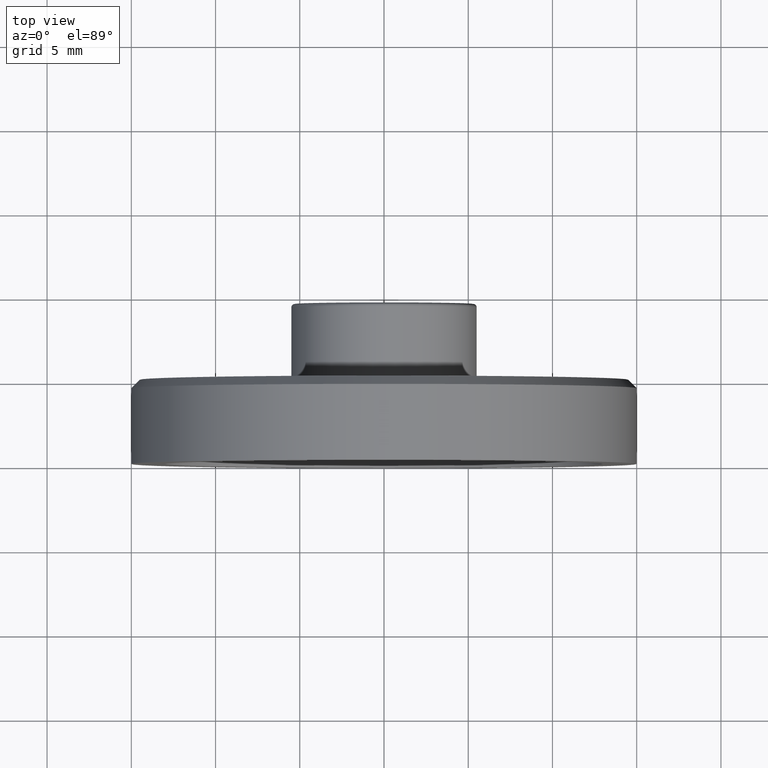
[diagram: clean part render]
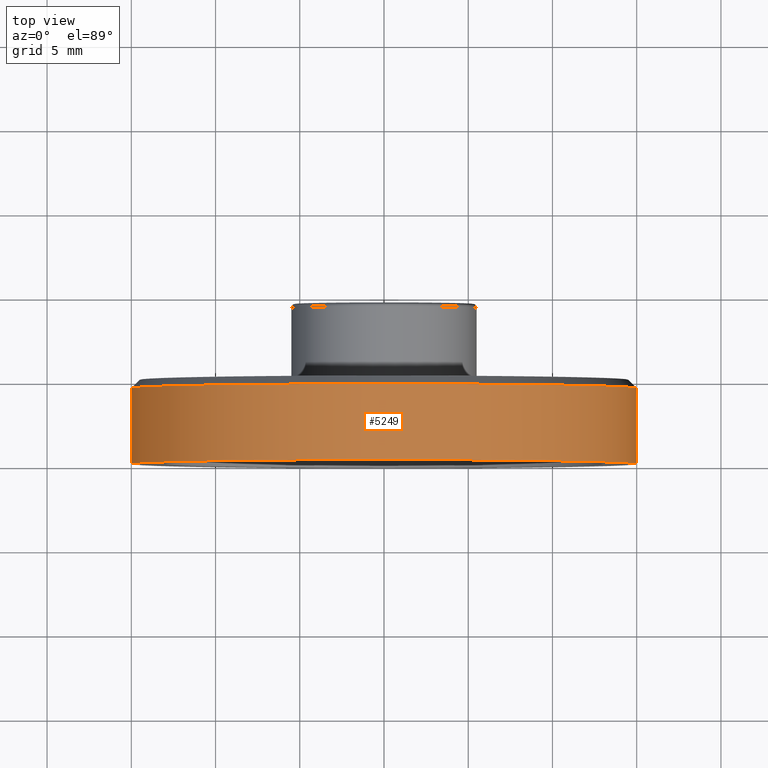
[diagram: same view with one face highlighted and labeled with its STEP entity id]
A machine part, top view. The second image highlights one B-rep face of the part: STEP entity #5249.
In plain terms, the highlighted cylindrical surface (partial cylindrical patch) has radius 15 mm, axis along (0, -1, -0).
Its self-contained STEP definition (entity closure, byte-faithful):
#69 = CYLINDRICAL_SURFACE ( 'NONE', #13418, 15.00000000000000000 ) ;
#138 = CIRCLE ( 'NONE', #14054, 15.00000000000000000 ) ;
#552 = EDGE_CURVE ( 'NONE', #11524, #1127, #12204, .T. ) ;
#1127 = VERTEX_POINT ( 'NONE', #7260 ) ;
#1309 = AXIS2_PLACEMENT_3D ( 'NONE', #3776, #9380, #5984 ) ;
#1680 = CARTESIAN_POINT ( 'NONE',  ( 15.00000000000000000, 3.000000000000001332, 0.000000000000000000 ) ) ;
#1707 = ORIENTED_EDGE ( 'NONE', *, *, #8577, .T. ) ;
#2364 = ORIENTED_EDGE ( 'NONE', *, *, #3466, .F. ) ;
#2372 = EDGE_CURVE ( 'NONE', #8104, #1127, #138, .T. ) ;
#2568 = DIRECTION ( 'NONE',  ( 1.884071998688235002E-16, -1.000000000000000000, -0.000000000000000000 ) ) ;
#3064 = DIRECTION ( 'NONE',  ( 1.884071998688235002E-16, -1.000000000000000000, -0.000000000000000000 ) ) ;
#3128 = CIRCLE ( 'NONE', #1309, 15.00000000000000000 ) ;
#3466 = EDGE_CURVE ( 'NONE', #11967, #8104, #13657, .T. ) ;
#3609 = CARTESIAN_POINT ( 'NONE',  ( -1.695664798819406596E-16, -3.035766082959412415E-15, 0.000000000000000000 ) ) ;
#3641 = VECTOR ( 'NONE', #6464, 1000.000000000000000 ) ;
#3776 = CARTESIAN_POINT ( 'NONE',  ( -1.017398879291646225E-15, 4.499999999999996447, 0.000000000000000000 ) ) ;
#3843 = CARTESIAN_POINT ( 'NONE',  ( 15.00000000000000000, -2.096580849270600606E-16, 0.000000000000000000 ) ) ;
#5002 = CARTESIAN_POINT ( 'NONE',  ( 14.99999999999999822, 4.499999999999999112, 0.000000000000000000 ) ) ;
#5249 = ADVANCED_FACE ( 'NONE', ( #8620 ), #69, .T. ) ;
#5984 = DIRECTION ( 'NONE',  ( -1.000000000000000000, -1.734723475976807094E-16, 0.000000000000000000 ) ) ;
#6464 = DIRECTION ( 'NONE',  ( 1.884071998688235002E-16, -1.000000000000000000, -0.000000000000000000 ) ) ;
#7053 = DIRECTION ( 'NONE',  ( 1.884071998688235002E-16, -1.000000000000000000, -0.000000000000000000 ) ) ;
#7260 = CARTESIAN_POINT ( 'NONE',  ( -15.00000000000000000, -5.861874080991765386E-15, 1.836970198721029589E-15 ) ) ;
#7361 = CARTESIAN_POINT ( 'NONE',  ( -7.347880794884114806E-16, 2.999999999999998224, 0.000000000000000000 ) ) ;
#8104 = VERTEX_POINT ( 'NONE', #3843 ) ;
#8261 = CARTESIAN_POINT ( 'NONE',  ( -15.00000000000000355, 4.499999999999993783, 1.836970198721029983E-15 ) ) ;
#8458 = DIRECTION ( 'NONE',  ( 1.000000000000000000, 2.023844055306275026E-16, 0.000000000000000000 ) ) ;
#8577 = EDGE_CURVE ( 'NONE', #11967, #11524, #3128, .T. ) ;
#8620 = FACE_OUTER_BOUND ( 'NONE', #9977, .T. ) ;
#9380 = DIRECTION ( 'NONE',  ( 1.884071998688233276E-16, -1.000000000000000000, -0.000000000000000000 ) ) ;
#9977 = EDGE_LOOP ( 'NONE', ( #1707, #12217, #13690, #2364 ) ) ;
#11255 = DIRECTION ( 'NONE',  ( 1.000000000000000000, 1.884071998688234755E-16, 0.000000000000000000 ) ) ;
#11524 = VERTEX_POINT ( 'NONE', #8261 ) ;
#11588 = VECTOR ( 'NONE', #7053, 1000.000000000000000 ) ;
#11683 = CARTESIAN_POINT ( 'NONE',  ( -15.00000000000000000, 2.999999999999995115, 1.836970198721029589E-15 ) ) ;
#11967 = VERTEX_POINT ( 'NONE', #5002 ) ;
#12204 = LINE ( 'NONE', #11683, #3641 ) ;
#12217 = ORIENTED_EDGE ( 'NONE', *, *, #552, .T. ) ;
#13418 = AXIS2_PLACEMENT_3D ( 'NONE', #7361, #3064, #8458 ) ;
#13657 = LINE ( 'NONE', #1680, #11588 ) ;
#13690 = ORIENTED_EDGE ( 'NONE', *, *, #2372, .F. ) ;
#14054 = AXIS2_PLACEMENT_3D ( 'NONE', #3609, #2568, #11255 ) ;